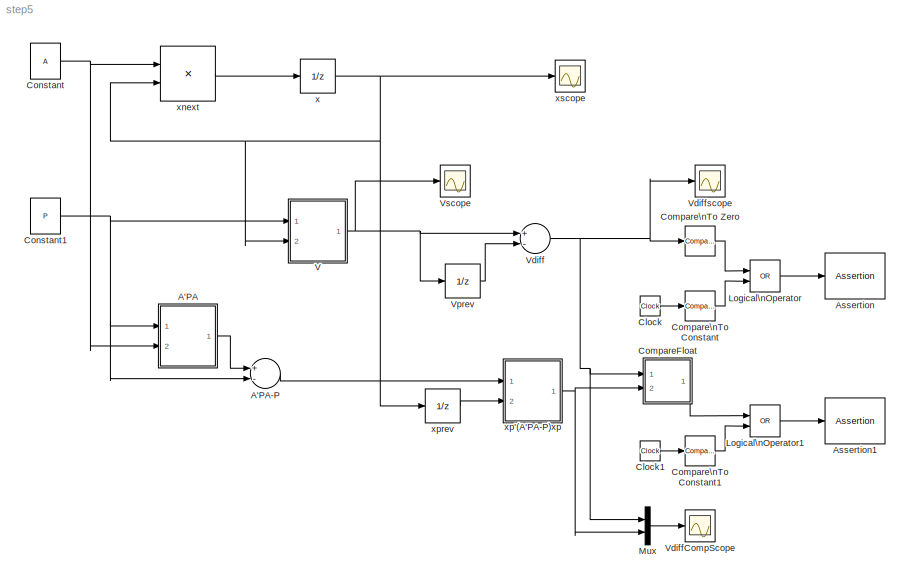
MODEL step5
KIND model
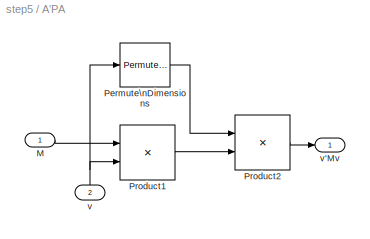
BLOCK [SubSystem] A'PA
  FunctionWithSeparateData = off
  MaskHideContents = off
  MinAlgLoopOccurrences = off
  Opaque = off
  Ports = [2, 1]
  PropExecContextOutsideSubsystem = off
  RTWSystemCode = Auto
  RequestExecContextInheritance = off
  SID = 43
BLOCK [Sum] A'PA-P
  InputSameDT = off
  Inputs = +-
  OutDataTypeStr = Inherit: Inherit via internal rule
  Ports = [2, 1]
  SID = 41
  SaturateOnIntegerOverflow = off
BLOCK [Inport] A'PA/M
  IconDisplay = Port number
  SID = 44
BLOCK [PermuteDimensions] A'PA/Permute\nDimensions
  SID = 46
BLOCK [Product] A'PA/Product1
  InputSameDT = off
  Multiplication = Matrix(*)
  OutDataTypeStr = Inherit: Inherit via internal rule
  Ports = [2, 1]
  SID = 47
  SaturateOnIntegerOverflow = off
BLOCK [Product] A'PA/Product2
  InputSameDT = off
  Multiplication = Matrix(*)
  OutDataTypeStr = Inherit: Inherit via internal rule
  Ports = [2, 1]
  SID = 48
  SaturateOnIntegerOverflow = off
BLOCK [Inport] A'PA/v
  IconDisplay = Port number
  Port = 2
  SID = 45
BLOCK [Outport] A'PA/v'Mv
  IconDisplay = Port number
  SID = 49
BLOCK [Assertion] Assertion
  Enabled = on
  SID = 28
BLOCK [Assertion] Assertion1
  Enabled = on
  SID = 60
BLOCK [Clock] Clock
  SID = 36
BLOCK [Clock] Clock1
  SID = 61
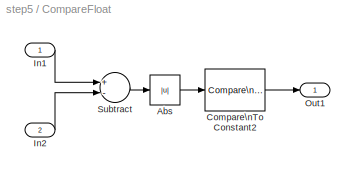
BLOCK [SubSystem] CompareFloat
  FunctionWithSeparateData = off
  MaskHideContents = off
  MinAlgLoopOccurrences = off
  Opaque = off
  Ports = [2, 1]
  PropExecContextOutsideSubsystem = off
  RTWSystemCode = Auto
  RequestExecContextInheritance = off
  SID = 72
BLOCK [Abs] CompareFloat/Abs
  SID = 70
  SaturateOnIntegerOverflow = off
BLOCK [Reference] CompareFloat/Compare\nTo Constant2  REF=simulink/Logic and Bit\nOperations/Compare\nTo Constant
  OutDataTypeStr = boolean
  Ports = [1, 1]
  SID = 71
  SourceBlock = simulink/Logic and Bit\nOperations/Compare\nTo Constant
  SourceType = Compare To Constant
  ZeroCross = on
  const = 1e-9
  relop = <=
BLOCK [Inport] CompareFloat/In1
  IconDisplay = Port number
  SID = 73
BLOCK [Inport] CompareFloat/In2
  IconDisplay = Port number
  Port = 2
  SID = 75
BLOCK [Outport] CompareFloat/Out1
  IconDisplay = Port number
  SID = 74
BLOCK [Sum] CompareFloat/Subtract
  InputSameDT = off
  Inputs = +-
  OutDataTypeStr = Inherit: Inherit via internal rule
  Ports = [2, 1]
  SID = 67
  SaturateOnIntegerOverflow = off
BLOCK [Reference] Compare\nTo Constant  REF=simulink/Logic and Bit\nOperations/Compare\nTo Constant
  OutDataTypeStr = boolean
  Ports = [1, 1]
  SID = 37
  SourceBlock = simulink/Logic and Bit\nOperations/Compare\nTo Constant
  SourceType = Compare To Constant
  ZeroCross = on
  const = 1
  relop = <=
BLOCK [Reference] Compare\nTo Constant1  REF=simulink/Logic and Bit\nOperations/Compare\nTo Constant
  OutDataTypeStr = boolean
  Ports = [1, 1]
  SID = 62
  SourceBlock = simulink/Logic and Bit\nOperations/Compare\nTo Constant
  SourceType = Compare To Constant
  ZeroCross = on
  const = 1
  relop = <=
BLOCK [Reference] Compare\nTo Zero  REF=simulink/Logic and Bit\nOperations/Compare\nTo Zero
  OutDataTypeStr = boolean
  Ports = [1, 1]
  SID = 34
  SourceBlock = simulink/Logic and Bit\nOperations/Compare\nTo Zero
  SourceType = Compare To Zero
  ZeroCross = on
  relop = <
BLOCK [Constant] Constant
  SID = 2
  Value = A
BLOCK [Constant] Constant1
  SID = 6
  Value = P
BLOCK [Logic] Logical\nOperator
  AllPortsSameDT = off
  IconShape = distinctive
  Operator = OR
  OutDataTypeStr = boolean
  Ports = [2, 1]
  SID = 38
BLOCK [Logic] Logical\nOperator1
  AllPortsSameDT = off
  IconShape = distinctive
  Operator = OR
  OutDataTypeStr = boolean
  Ports = [2, 1]
  SID = 64
BLOCK [Mux] Mux
  DisplayOption = bar
  Inputs = 2
  Ports = [2, 1]
  SID = 78
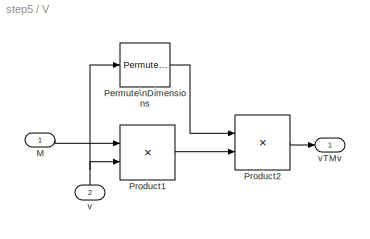
BLOCK [SubSystem] V
  FunctionWithSeparateData = off
  MaskHideContents = off
  MinAlgLoopOccurrences = off
  Opaque = off
  Ports = [2, 1]
  PropExecContextOutsideSubsystem = off
  RTWSystemCode = Auto
  RequestExecContextInheritance = off
  SID = 11
BLOCK [Inport] V/M
  IconDisplay = Port number
  SID = 12
BLOCK [PermuteDimensions] V/Permute\nDimensions
  SID = 8
BLOCK [Product] V/Product1
  InputSameDT = off
  Multiplication = Matrix(*)
  OutDataTypeStr = Inherit: Inherit via internal rule
  Ports = [2, 1]
  SID = 7
  SaturateOnIntegerOverflow = off
BLOCK [Product] V/Product2
  InputSameDT = off
  Multiplication = Matrix(*)
  OutDataTypeStr = Inherit: Inherit via internal rule
  Ports = [2, 1]
  SID = 9
  SaturateOnIntegerOverflow = off
BLOCK [Inport] V/v
  IconDisplay = Port number
  Port = 2
  SID = 14
BLOCK [Outport] V/vTMv
  IconDisplay = Port number
  SID = 13
BLOCK [Sum] Vdiff
  InputSameDT = off
  Inputs = +-
  OutDataTypeStr = Inherit: Inherit via internal rule
  Ports = [2, 1]
  SID = 33
  SaturateOnIntegerOverflow = off
BLOCK [Scope] VdiffCompScope
  DataFormat = StructureWithTime
  Floating = off
  NumInputPorts = 1
  Ports = [1]
  SID = 77
  SampleTime = 0
  SaveName = ScopeData3
  ShowLegends = off
BLOCK [Scope] Vdiffscope
  DataFormat = StructureWithTime
  Floating = off
  NumInputPorts = 1
  Ports = [1]
  SID = 10
  SampleTime = 0
  SaveName = ScopeData1
  ShowLegends = off
BLOCK [UnitDelay] Vprev
  InputProcessing = Elements as channels (sample based)
  SID = 32
BLOCK [Scope] Vscope
  DataFormat = StructureWithTime
  Floating = off
  NumInputPorts = 1
  Ports = [1]
  SID = 30
  SampleTime = 0
  SaveName = ScopeData2
  ShowLegends = off
  ZoomMode = yonly
BLOCK [UnitDelay] x
  InputProcessing = Elements as channels (sample based)
  SID = 1
  X0 = x0
BLOCK [Product] xnext
  InputSameDT = off
  Multiplication = Matrix(*)
  OutDataTypeStr = Inherit: Inherit via internal rule
  Ports = [2, 1]
  SID = 3
  SaturateOnIntegerOverflow = off
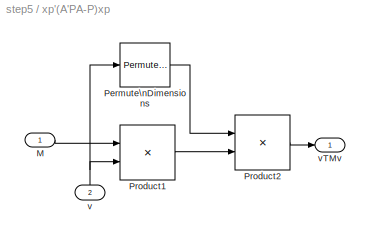
BLOCK [SubSystem] xp'(A'PA-P)xp
  FunctionWithSeparateData = off
  MaskHideContents = off
  MinAlgLoopOccurrences = off
  Opaque = off
  Ports = [2, 1]
  PropExecContextOutsideSubsystem = off
  RTWSystemCode = Auto
  RequestExecContextInheritance = off
  SID = 50
BLOCK [Inport] xp'(A'PA-P)xp/M
  IconDisplay = Port number
  SID = 51
BLOCK [PermuteDimensions] xp'(A'PA-P)xp/Permute\nDimensions
  SID = 53
BLOCK [Product] xp'(A'PA-P)xp/Product1
  InputSameDT = off
  Multiplication = Matrix(*)
  OutDataTypeStr = Inherit: Inherit via internal rule
  Ports = [2, 1]
  SID = 54
  SaturateOnIntegerOverflow = off
BLOCK [Product] xp'(A'PA-P)xp/Product2
  InputSameDT = off
  Multiplication = Matrix(*)
  OutDataTypeStr = Inherit: Inherit via internal rule
  Ports = [2, 1]
  SID = 55
  SaturateOnIntegerOverflow = off
BLOCK [Inport] xp'(A'PA-P)xp/v
  IconDisplay = Port number
  Port = 2
  SID = 52
BLOCK [Outport] xp'(A'PA-P)xp/vTMv
  IconDisplay = Port number
  SID = 56
BLOCK [UnitDelay] xprev
  InputProcessing = Elements as channels (sample based)
  SID = 76
  X0 = x0
BLOCK [Scope] xscope
  DataFormat = StructureWithTime
  Floating = off
  NumInputPorts = 1
  Ports = [1]
  SID = 4
  SampleTime = 0
  ShowLegends = off
LINE A'PA-P:1 -> xp'(A'PA-P)xp:1
LINE A'PA/M:1 -> A'PA/Product1:1
LINE A'PA/Permute\nDimensions:1 -> A'PA/Product2:1
LINE A'PA/Product1:1 -> A'PA/Product2:2
LINE A'PA/Product2:1 -> A'PA/v'Mv:1
NET A'PA/v:1 -> A'PA/Permute\nDimensions:1, A'PA/Product1:2
LINE A'PA:1 -> A'PA-P:1
LINE Clock1:1 -> Compare\nTo Constant1:1
LINE Clock:1 -> Compare\nTo Constant:1
LINE CompareFloat/Abs:1 -> CompareFloat/Compare\nTo Constant2:1
LINE CompareFloat/Compare\nTo Constant2:1 -> CompareFloat/Out1:1
LINE CompareFloat/In1:1 -> CompareFloat/Subtract:1
LINE CompareFloat/In2:1 -> CompareFloat/Subtract:2
LINE CompareFloat/Subtract:1 -> CompareFloat/Abs:1
LINE CompareFloat:1 -> Logical\nOperator1:1
LINE Compare\nTo Constant1:1 -> Logical\nOperator1:2
LINE Compare\nTo Constant:1 -> Logical\nOperator:2
LINE Compare\nTo Zero:1 -> Logical\nOperator:1
NET Constant1:1 -> A'PA-P:2, A'PA:1, V:1
NET Constant:1 -> A'PA:2, xnext:1
LINE Logical\nOperator1:1 -> Assertion1:1
LINE Logical\nOperator:1 -> Assertion:1
LINE Mux:1 -> VdiffCompScope:1
LINE V/M:1 -> V/Product1:1
LINE V/Permute\nDimensions:1 -> V/Product2:1
LINE V/Product1:1 -> V/Product2:2
LINE V/Product2:1 -> V/vTMv:1
NET V/v:1 -> V/Permute\nDimensions:1, V/Product1:2
NET V:1 -> Vdiff:1, Vprev:1, Vscope:1
NET Vdiff:1 -> CompareFloat:1, Compare\nTo Zero:1, Mux:1, Vdiffscope:1
LINE Vprev:1 -> Vdiff:2
NET x:1 -> V:2, xnext:2, xprev:1, xscope:1
LINE xnext:1 -> x:1
LINE xp'(A'PA-P)xp/M:1 -> xp'(A'PA-P)xp/Product1:1
LINE xp'(A'PA-P)xp/Permute\nDimensions:1 -> xp'(A'PA-P)xp/Product2:1
LINE xp'(A'PA-P)xp/Product1:1 -> xp'(A'PA-P)xp/Product2:2
LINE xp'(A'PA-P)xp/Product2:1 -> xp'(A'PA-P)xp/vTMv:1
NET xp'(A'PA-P)xp/v:1 -> xp'(A'PA-P)xp/Permute\nDimensions:1, xp'(A'PA-P)xp/Product1:2
NET xp'(A'PA-P)xp:1 -> CompareFloat:2, Mux:2
LINE xprev:1 -> xp'(A'PA-P)xp:2
note: NET lines group one-source signal fan-out (src -> all destinations, sorted); 1:1 wires keep LINE
